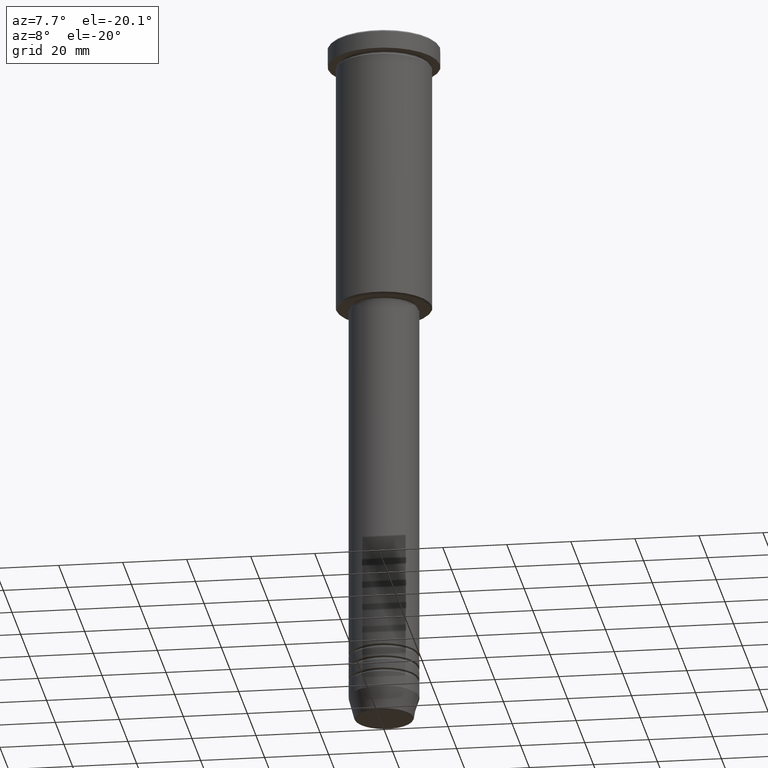
[diagram: clean part render]
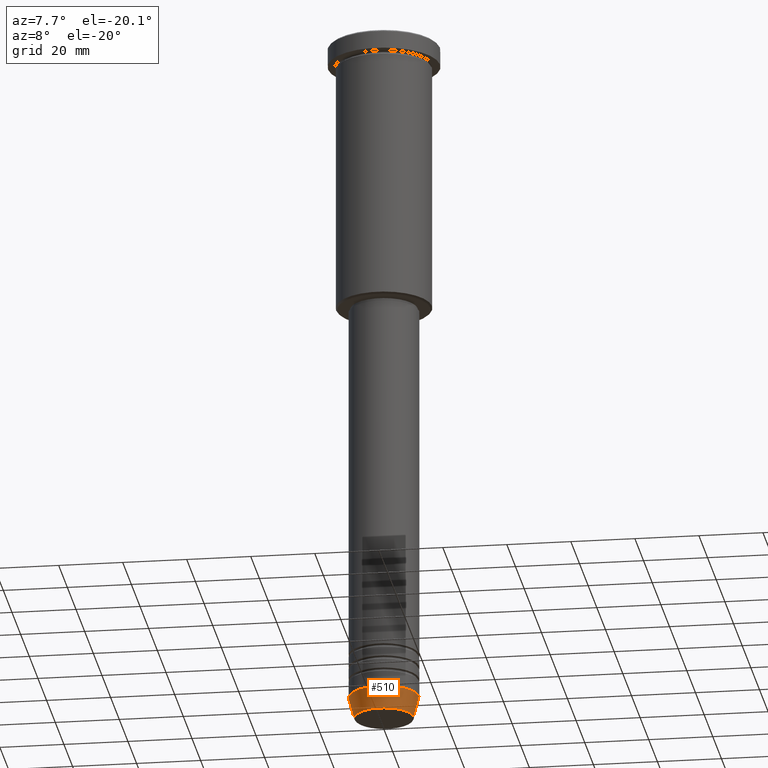
[diagram: same view with one face highlighted and labeled with its STEP entity id]
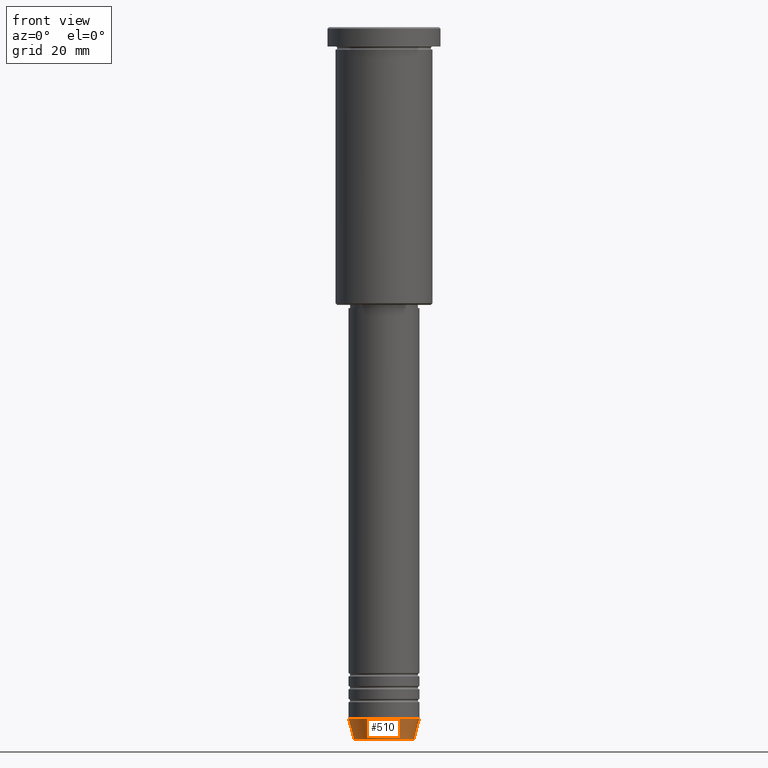
[diagram: same view with one face highlighted and labeled with its STEP entity id]
A machine part, auxiliary view. The second image highlights one B-rep face of the part: STEP entity #510.
A second angle (front view) of the same face is appended — the face is thin or edge-on in the first view.
In plain terms, the highlighted conical surface has half-angle 15 deg.
Its self-contained STEP definition (entity closure, byte-faithful):
#29 = LINE ( 'NONE', #396, #934 ) ;
#45 = AXIS2_PLACEMENT_3D ( 'NONE', #798, #1097, #532 ) ;
#72 = EDGE_LOOP ( 'NONE', ( #137, #1145, #130, #364 ) ) ;
#114 = CIRCLE ( 'NONE', #45, 9.223655072137189492 ) ;
#129 = DIRECTION ( 'NONE',  ( 0.2588190451025213501, 0.000000000000000000, 0.9659258262890680902 ) ) ;
#130 = ORIENTED_EDGE ( 'NONE', *, *, #1137, .T. ) ;
#137 = ORIENTED_EDGE ( 'NONE', *, *, #1103, .F. ) ;
#214 = DIRECTION ( 'NONE',  ( -0.2588190451025213501, 3.169619151431772337E-17, 0.9659258262890680902 ) ) ;
#228 = VECTOR ( 'NONE', #129, 1000.000000000000000 ) ;
#257 = DIRECTION ( 'NONE',  ( -0.000000000000000000, -0.000000000000000000, 1.000000000000000000 ) ) ;
#320 = LINE ( 'NONE', #873, #228 ) ;
#354 = CARTESIAN_POINT ( 'NONE',  ( 9.223655072137189492, 0.000000000000000000, -220.6294095225512706 ) ) ;
#364 = ORIENTED_EDGE ( 'NONE', *, *, #846, .F. ) ;
#396 = CARTESIAN_POINT ( 'NONE',  ( -11.00000000000000000, 1.347111479062088405E-15, -214.0000000000000284 ) ) ;
#417 = CIRCLE ( 'NONE', #1142, 11.00000000000000000 ) ;
#443 = EDGE_CURVE ( 'NONE', #1072, #842, #114, .T. ) ;
#459 = CARTESIAN_POINT ( 'NONE',  ( -9.223655072137189492, 1.238341722557647202E-15, -220.6294095225512706 ) ) ;
#510 = ADVANCED_FACE ( 'NONE', ( #636 ), #970, .T. ) ;
#532 = DIRECTION ( 'NONE',  ( 1.000000000000000000, 0.000000000000000000, 0.000000000000000000 ) ) ;
#533 = VERTEX_POINT ( 'NONE', #942 ) ;
#555 = DIRECTION ( 'NONE',  ( -0.000000000000000000, -0.000000000000000000, 1.000000000000000000 ) ) ;
#636 = FACE_OUTER_BOUND ( 'NONE', #72, .T. ) ;
#638 = CARTESIAN_POINT ( 'NONE',  ( -11.00000000000000000, 1.347111479062088405E-15, -214.0000000000000284 ) ) ;
#676 = VERTEX_POINT ( 'NONE', #638 ) ;
#798 = CARTESIAN_POINT ( 'NONE',  ( 0.000000000000000000, 0.000000000000000000, -220.6294095225512706 ) ) ;
#810 = CARTESIAN_POINT ( 'NONE',  ( 0.000000000000000000, 0.000000000000000000, -214.0000000000000284 ) ) ;
#842 = VERTEX_POINT ( 'NONE', #354 ) ;
#846 = EDGE_CURVE ( 'NONE', #676, #533, #417, .T. ) ;
#873 = CARTESIAN_POINT ( 'NONE',  ( 11.00000000000000000, 0.000000000000000000, -214.0000000000000284 ) ) ;
#925 = DIRECTION ( 'NONE',  ( 1.000000000000000000, 0.000000000000000000, 0.000000000000000000 ) ) ;
#934 = VECTOR ( 'NONE', #214, 1000.000000000000000 ) ;
#942 = CARTESIAN_POINT ( 'NONE',  ( 11.00000000000000000, 0.000000000000000000, -214.0000000000000284 ) ) ;
#970 = CONICAL_SURFACE ( 'NONE', #1052, 11.00000000000000000, 0.2617993877991500740 ) ;
#1017 = CARTESIAN_POINT ( 'NONE',  ( 0.000000000000000000, 0.000000000000000000, -214.0000000000000284 ) ) ;
#1052 = AXIS2_PLACEMENT_3D ( 'NONE', #1017, #555, #925 ) ;
#1072 = VERTEX_POINT ( 'NONE', #459 ) ;
#1097 = DIRECTION ( 'NONE',  ( -0.000000000000000000, -0.000000000000000000, 1.000000000000000000 ) ) ;
#1103 = EDGE_CURVE ( 'NONE', #1072, #676, #29, .T. ) ;
#1137 = EDGE_CURVE ( 'NONE', #842, #533, #320, .T. ) ;
#1142 = AXIS2_PLACEMENT_3D ( 'NONE', #810, #257, #1175 ) ;
#1145 = ORIENTED_EDGE ( 'NONE', *, *, #443, .T. ) ;
#1175 = DIRECTION ( 'NONE',  ( 1.000000000000000000, 0.000000000000000000, 0.000000000000000000 ) ) ;